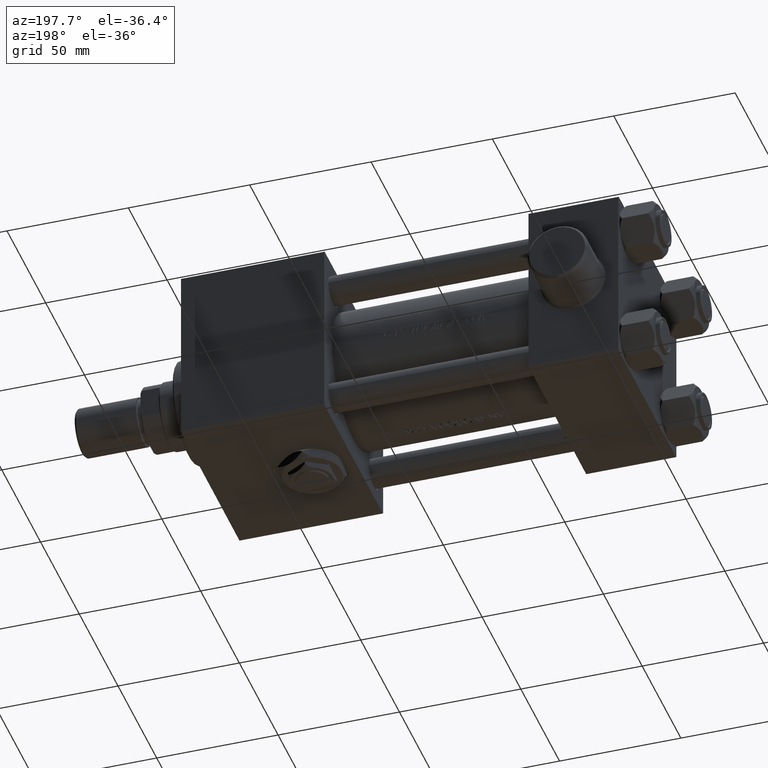
[diagram: clean part render]
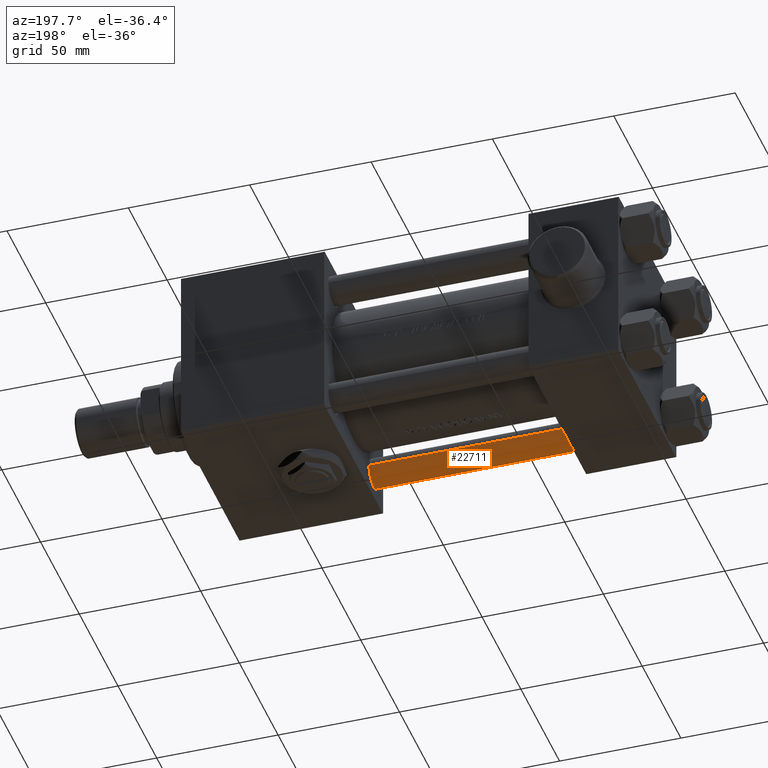
[diagram: same view with one face highlighted and labeled with its STEP entity id]
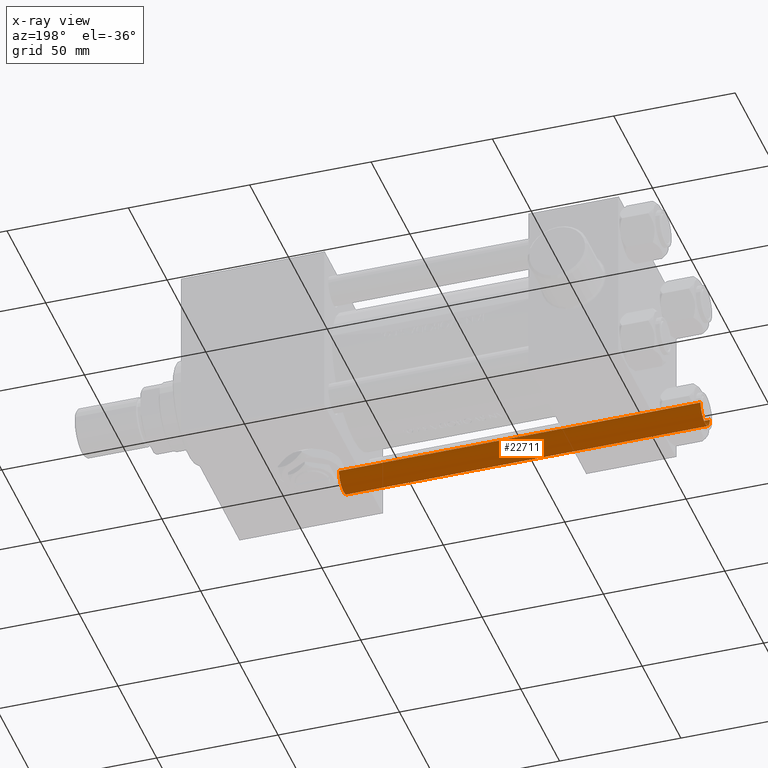
[diagram: x-ray of the same camera — body ghosted, the highlighted face saturated]
A machine part, auxiliary view. The second image highlights one B-rep face of the part: STEP entity #22711.
The next image is the same camera in x-ray: the body ghosted, the highlighted face saturated — about 0% of this face is hidden behind the body in this view.
In plain terms, the highlighted cylindrical surface (edge-blend (fillet) strip) has radius 6 mm, axis along (-1, 0, 0).
Its self-contained STEP definition (entity closure, byte-faithful):
#458 = AXIS2_PLACEMENT_3D ( 'NONE', #626, #19930, #30091 ) ;
#626 = CARTESIAN_POINT ( 'NONE',  ( 0.000000000000000000, 0.000000000000000000, 149.5000000000000000 ) ) ;
#869 = VECTOR ( 'NONE', #13208, 1000.000000000000000 ) ;
#2822 = CIRCLE ( 'NONE', #458, 6.000000000000000888 ) ;
#5621 = CARTESIAN_POINT ( 'NONE',  ( -6.000000000000000888, 0.000000000000000000, 150.0000000000000000 ) ) ;
#7683 = DIRECTION ( 'NONE',  ( -0.000000000000000000, -0.000000000000000000, -1.000000000000000000 ) ) ;
#7907 = EDGE_CURVE ( 'NONE', #39474, #32867, #2822, .T. ) ;
#9090 = LINE ( 'NONE', #5621, #30028 ) ;
#10247 = EDGE_LOOP ( 'NONE', ( #44257, #47143, #12215, #38931 ) ) ;
#12215 = ORIENTED_EDGE ( 'NONE', *, *, #18593, .T. ) ;
#13208 = DIRECTION ( 'NONE',  ( -0.000000000000000000, -0.000000000000000000, -1.000000000000000000 ) ) ;
#16423 = CARTESIAN_POINT ( 'NONE',  ( 6.000000000000000888, 7.347880794884120722E-16, 150.0000000000000000 ) ) ;
#18178 = AXIS2_PLACEMENT_3D ( 'NONE', #46079, #7683, #26763 ) ;
#18593 = EDGE_CURVE ( 'NONE', #32867, #24890, #9090, .T. ) ;
#19930 = DIRECTION ( 'NONE',  ( 0.000000000000000000, 0.000000000000000000, -1.000000000000000000 ) ) ;
#22711 = ADVANCED_FACE ( 'NONE', ( #23527 ), #26523, .T. ) ;
#23233 = CARTESIAN_POINT ( 'NONE',  ( -6.000000000000000888, 0.000000000000000000, 149.5000000000000000 ) ) ;
#23527 = FACE_OUTER_BOUND ( 'NONE', #10247, .T. ) ;
#24191 = DIRECTION ( 'NONE',  ( -0.000000000000000000, -0.000000000000000000, -1.000000000000000000 ) ) ;
#24710 = EDGE_CURVE ( 'NONE', #39474, #31557, #43166, .T. ) ;
#24890 = VERTEX_POINT ( 'NONE', #37418 ) ;
#25691 = CARTESIAN_POINT ( 'NONE',  ( 0.000000000000000000, 0.000000000000000000, 0.5000000000000004441 ) ) ;
#26480 = CARTESIAN_POINT ( 'NONE',  ( 6.000000000000000888, 7.347880794884120722E-16, 149.5000000000000000 ) ) ;
#26523 = CYLINDRICAL_SURFACE ( 'NONE', #18178, 6.000000000000000888 ) ;
#26763 = DIRECTION ( 'NONE',  ( -1.000000000000000000, 0.000000000000000000, 0.000000000000000000 ) ) ;
#27906 = AXIS2_PLACEMENT_3D ( 'NONE', #25691, #40788, #32385 ) ;
#30028 = VECTOR ( 'NONE', #24191, 1000.000000000000000 ) ;
#30091 = DIRECTION ( 'NONE',  ( 1.000000000000000000, 0.000000000000000000, 0.000000000000000000 ) ) ;
#31557 = VERTEX_POINT ( 'NONE', #45718 ) ;
#32385 = DIRECTION ( 'NONE',  ( 1.000000000000000000, 0.000000000000000000, 0.000000000000000000 ) ) ;
#32867 = VERTEX_POINT ( 'NONE', #23233 ) ;
#33682 = EDGE_CURVE ( 'NONE', #24890, #31557, #36597, .T. ) ;
#36597 = CIRCLE ( 'NONE', #27906, 6.000000000000000888 ) ;
#37418 = CARTESIAN_POINT ( 'NONE',  ( -6.000000000000000888, 0.000000000000000000, 0.5000000000000004441 ) ) ;
#38931 = ORIENTED_EDGE ( 'NONE', *, *, #33682, .T. ) ;
#39474 = VERTEX_POINT ( 'NONE', #26480 ) ;
#40788 = DIRECTION ( 'NONE',  ( -0.000000000000000000, -0.000000000000000000, 1.000000000000000000 ) ) ;
#43166 = LINE ( 'NONE', #16423, #869 ) ;
#44257 = ORIENTED_EDGE ( 'NONE', *, *, #24710, .F. ) ;
#45718 = CARTESIAN_POINT ( 'NONE',  ( 6.000000000000000888, 7.347880794884120722E-16, 0.5000000000000004441 ) ) ;
#46079 = CARTESIAN_POINT ( 'NONE',  ( 0.000000000000000000, 0.000000000000000000, 150.0000000000000000 ) ) ;
#47143 = ORIENTED_EDGE ( 'NONE', *, *, #7907, .T. ) ;